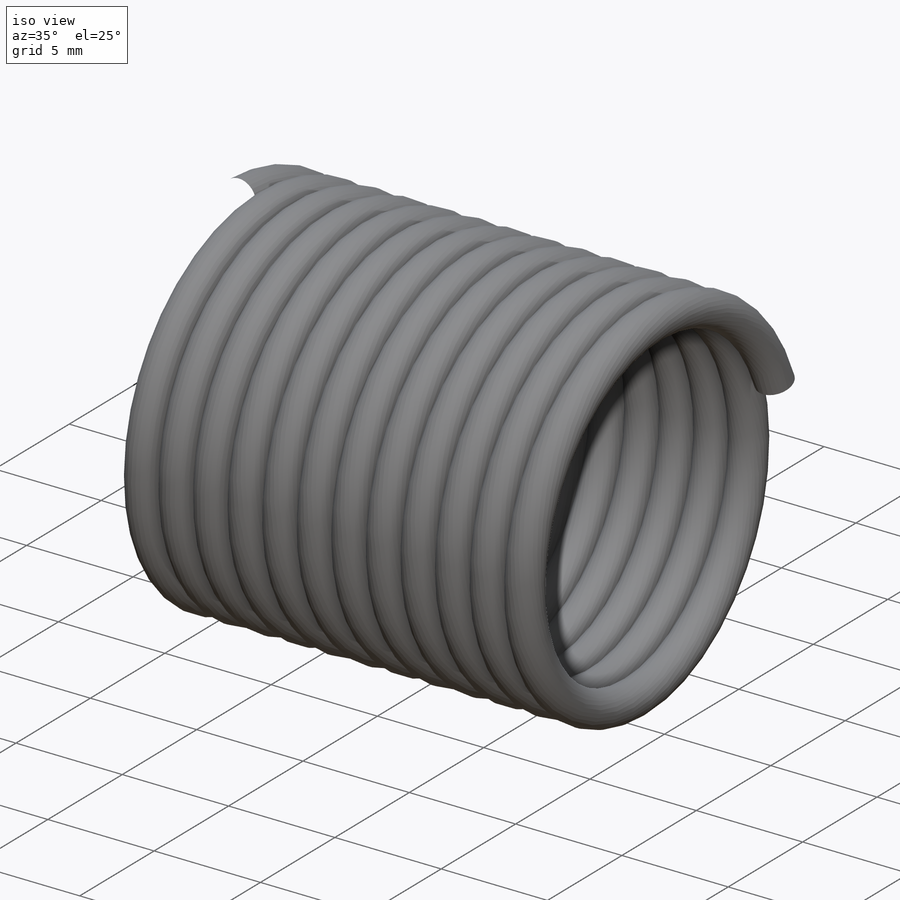
[diagram: iso view]
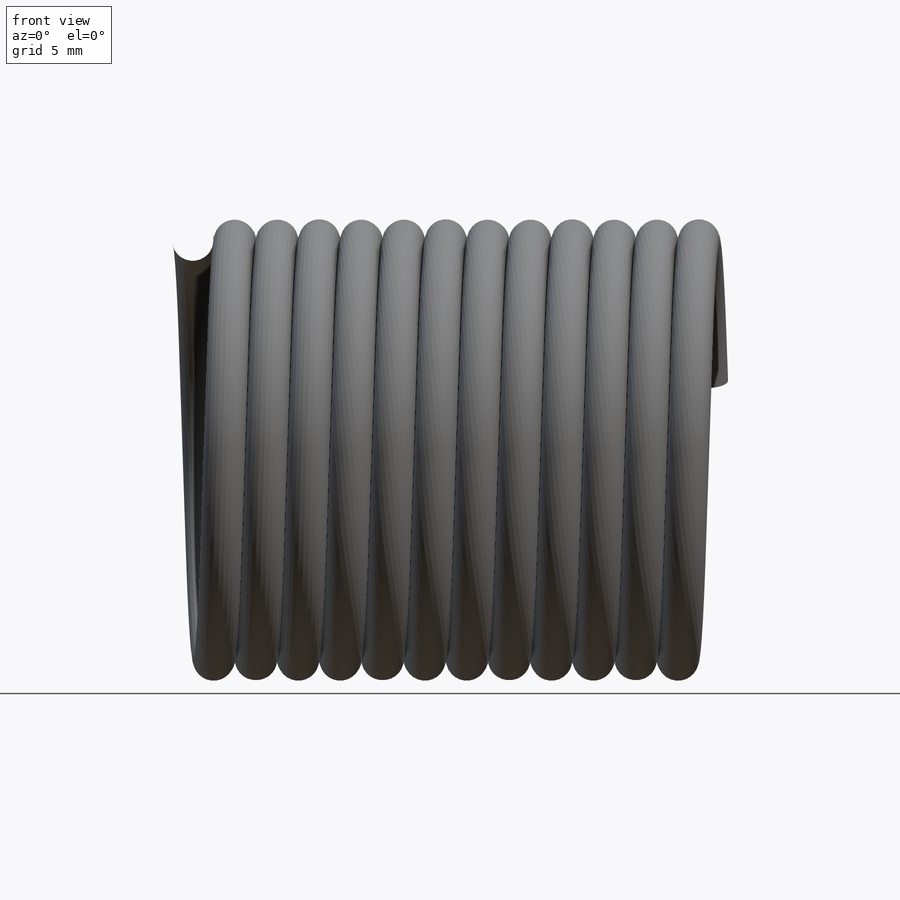
[diagram: front view]
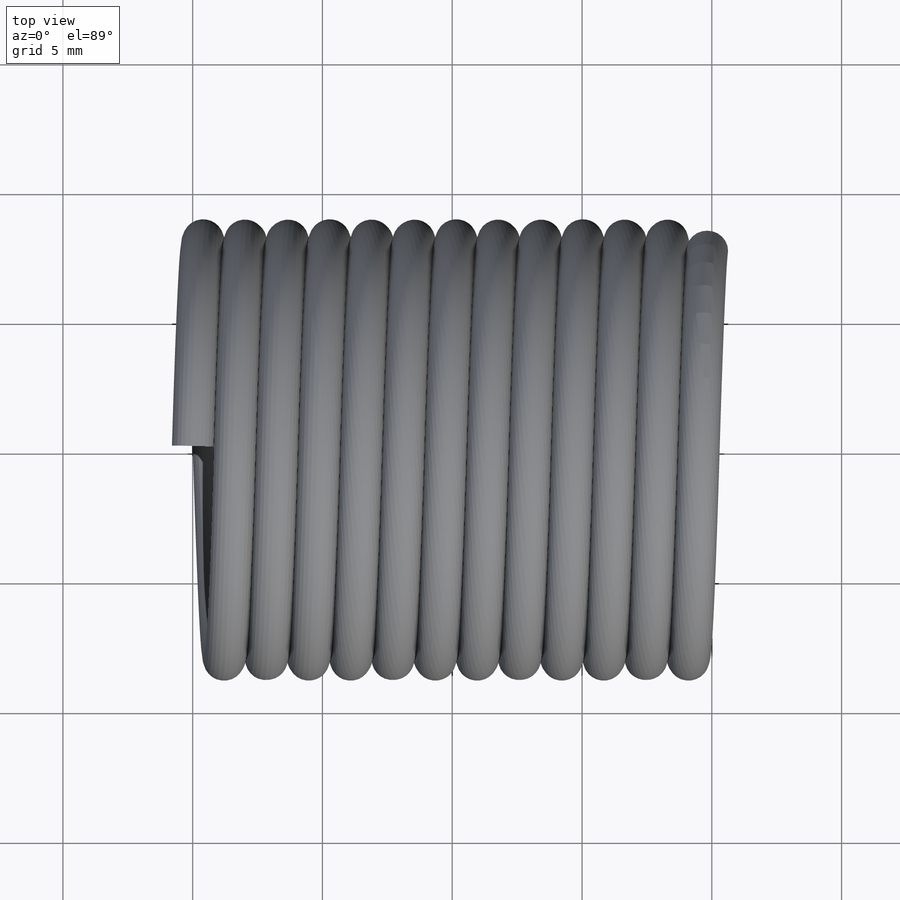
[diagram: top view]
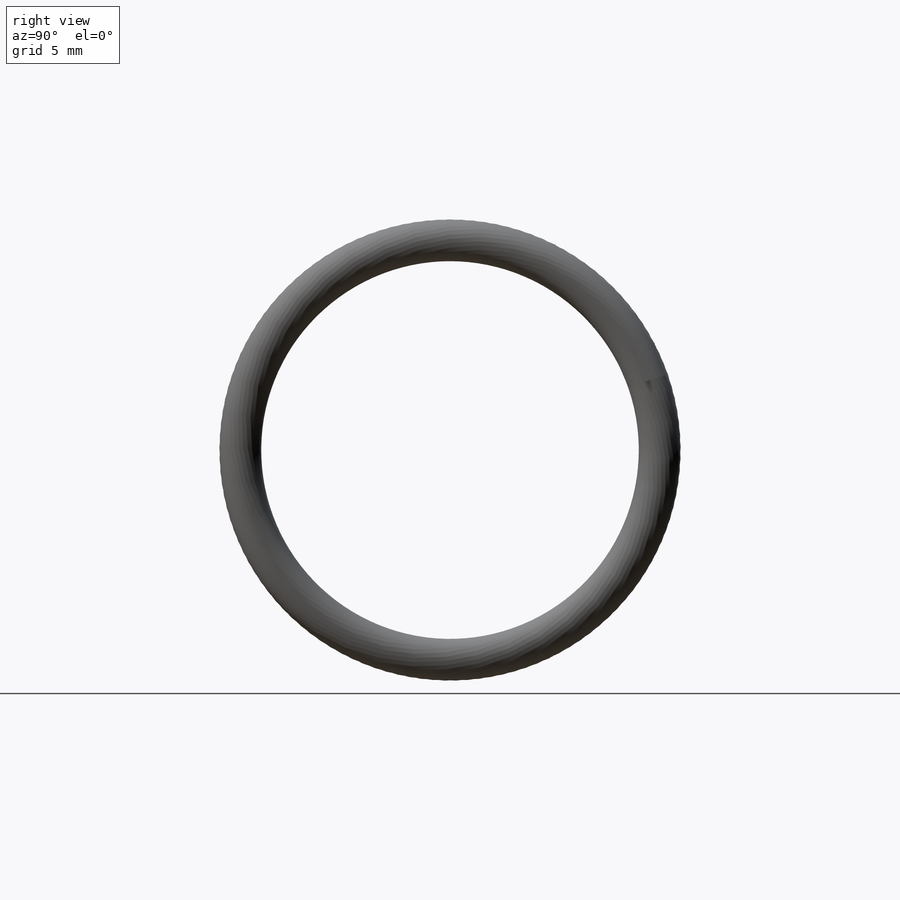
[diagram: right view]
SOLIDWORKS PART (.sldprt)
format: sldprt  version: not decoded by parser v0  size: 927,744 bytes
history: native  units: mm
features: sketch x5, extrude x2, material x1, helix x1, plane x1, sweep x1 (+11 scaffold rows collapsed)
feature tree (22):
  scaffold x11  (default folders/planes/origin — collapsed)
  material  "Material <not specified>"
  sketch  "Sketch1"  dims[Wire Dia=1.6002mm Spring OD=17.78mm Max Rod OD=13.1064mm]
  helix  "Helix/Spiral1"  Pitch=19.827443mm Number Coils=12.197
  plane  "Plane1"
  sketch  "Sketch2"  dims[D1=1.6002mm]
  sweep  "Sweep1"
  sketch  "Sketch3"  dims[D1=0.0mm]
  extrude  "Extrude1"  Depth=50.8mm Leg Length=50.8mm
  sketch  "Sketch4"  dims[D1=0.0mm]
  extrude  "Extrude2"  Depth=50.8mm
  sketch  "Sketch5"
decode coverage: 7 of 9 modeling features carry decoded parameters
note: suppression state not decoded; provenance and decode notes live in map.json
